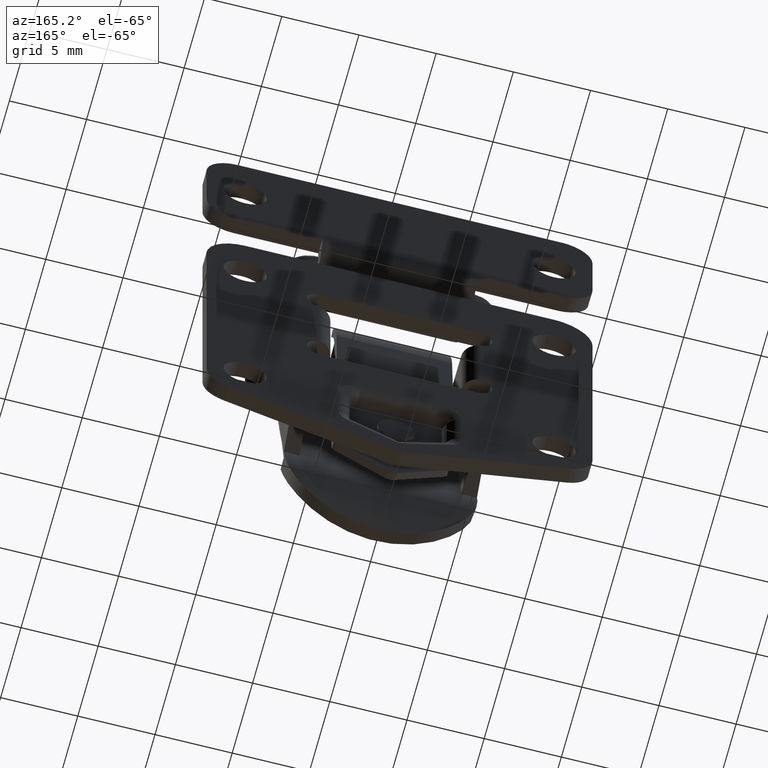
[diagram: clean part render]
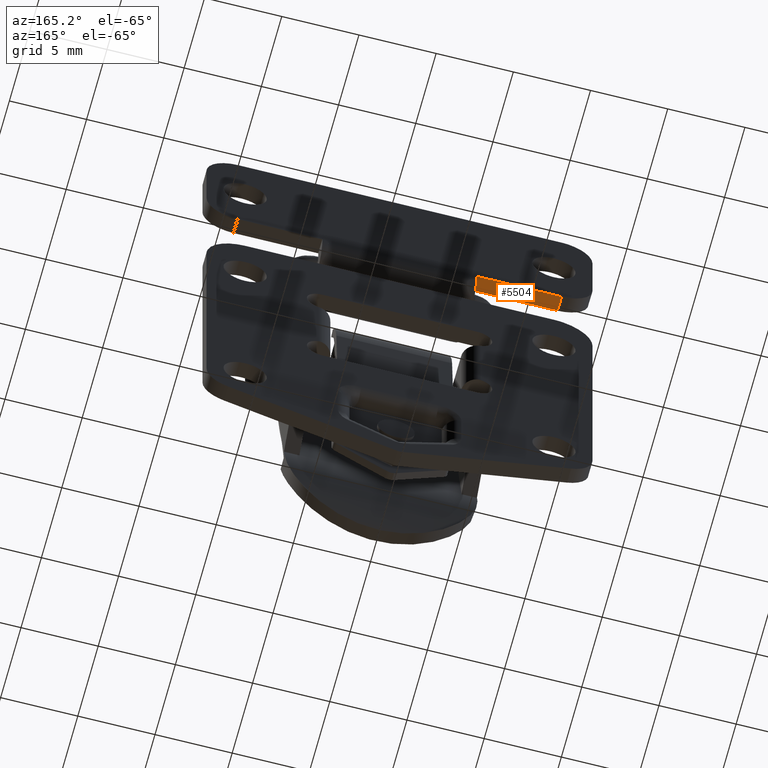
[diagram: same view with one face highlighted and labeled with its STEP entity id]
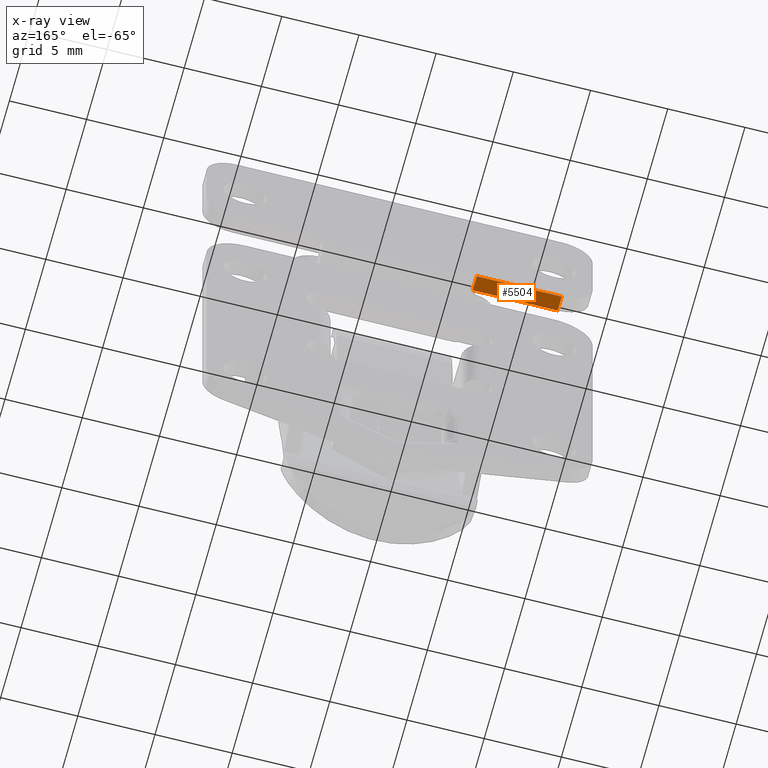
[diagram: x-ray of the same camera — body ghosted, the highlighted face saturated]
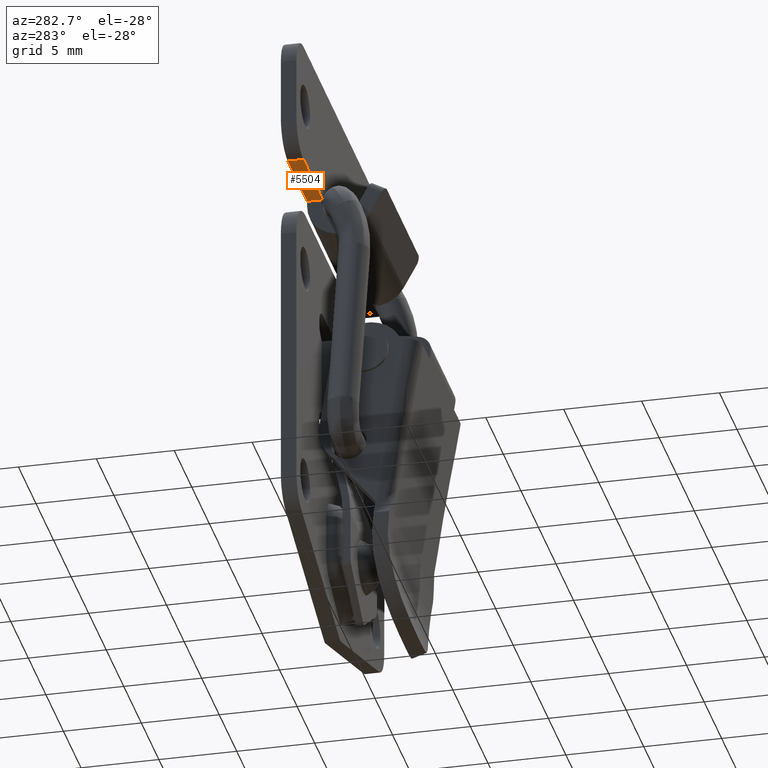
[diagram: same view with one face highlighted and labeled with its STEP entity id]
A machine part, auxiliary view. The second image highlights one B-rep face of the part: STEP entity #5504.
The next image is the same camera in x-ray: the body ghosted, the highlighted face saturated — about 0% of this face is hidden behind the body in this view.
A second angle (auxiliary view) of the same face is appended — the face is thin or edge-on in the first view.
In plain terms, the highlighted face is a freeform B-spline surface patch.
Its self-contained STEP definition (entity closure, byte-faithful):
#5304=CARTESIAN_POINT('',(2.100000000000110,10.500000000000000,0.500000000000000));
#5305=VERTEX_POINT('',#5304);
#5321=CARTESIAN_POINT('',(1.100000000000108,10.500000000000000,0.500000000000000));
#5322=VERTEX_POINT('',#5321);
#5323=CARTESIAN_POINT('',(1.100000000000108,10.500000000000000,0.500000000000000));
#5324=CARTESIAN_POINT('',(2.100000000000110,10.500000000000000,0.500000000000000));
#5325=QUASI_UNIFORM_CURVE('',1,(#5323,#5324),.UNSPECIFIED.,.F.,.U.);
#5326=EDGE_CURVE('',#5322,#5305,#5325,.T.);
#5477=CARTESIAN_POINT('',(1.050050027858267,10.774724989339941,0.500000000000000));
#5478=CARTESIAN_POINT('',(1.050050027858267,4.725274863138509,0.500000000000000));
#5479=CARTESIAN_POINT('',(2.149949873794279,10.774724989339941,0.500000000000000));
#5480=CARTESIAN_POINT('',(2.149949873794279,4.725274863138509,0.500000000000000));
#5481=B_SPLINE_SURFACE_WITH_KNOTS('',1,1,((#5477,#5479),(#5478,#5480)),.UNSPECIFIED.,.F.,.F.,.U.,(2,2),(2,2),(0.0,6.049450126201430),(0.041708356548473,0.958291561495140),.UNSPECIFIED.);
#5482=CARTESIAN_POINT('',(1.100000000000100,4.999999999999941,0.500000000000000));
#5483=VERTEX_POINT('',#5482);
#5484=CARTESIAN_POINT('',(1.100000000000108,10.500000000000000,0.500000000000000));
#5485=CARTESIAN_POINT('',(1.100000000000100,4.999999999999941,0.500000000000000));
#5486=QUASI_UNIFORM_CURVE('',1,(#5484,#5485),.UNSPECIFIED.,.F.,.U.);
#5487=EDGE_CURVE('',#5322,#5483,#5486,.T.);
#5488=ORIENTED_EDGE('',*,*,#5487,.F.);
#5489=ORIENTED_EDGE('',*,*,#5326,.T.);
#5490=CARTESIAN_POINT('',(2.100000000000100,4.999999999999941,0.500000000000000));
#5491=VERTEX_POINT('',#5490);
#5492=CARTESIAN_POINT('',(2.100000000000110,10.500000000000000,0.500000000000000));
#5493=CARTESIAN_POINT('',(2.100000000000100,4.999999999999941,0.500000000000000));
#5494=QUASI_UNIFORM_CURVE('',1,(#5492,#5493),.UNSPECIFIED.,.F.,.U.);
#5495=EDGE_CURVE('',#5305,#5491,#5494,.T.);
#5496=ORIENTED_EDGE('',*,*,#5495,.T.);
#5497=CARTESIAN_POINT('',(1.100000000000100,4.999999999999941,0.500000000000000));
#5498=CARTESIAN_POINT('',(2.100000000000100,4.999999999999941,0.500000000000000));
#5499=QUASI_UNIFORM_CURVE('',1,(#5497,#5498),.UNSPECIFIED.,.F.,.U.);
#5500=EDGE_CURVE('',#5483,#5491,#5499,.T.);
#5501=ORIENTED_EDGE('',*,*,#5500,.F.);
#5502=EDGE_LOOP('',(#5488,#5489,#5496,#5501));
#5503=FACE_OUTER_BOUND('',#5502,.T.);
#5504=ADVANCED_FACE('',(#5503),#5481,.F.);